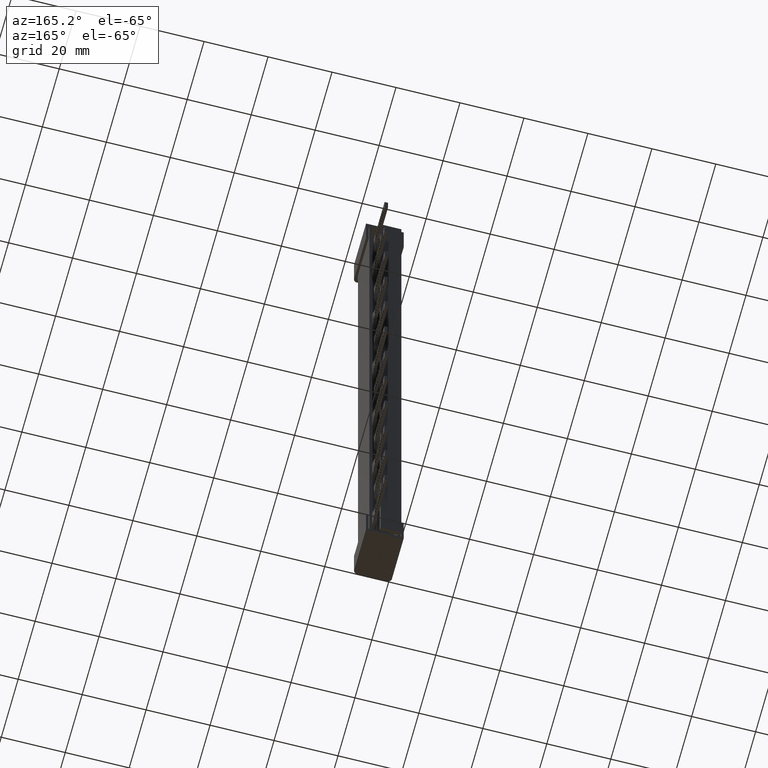
[diagram: clean part render]
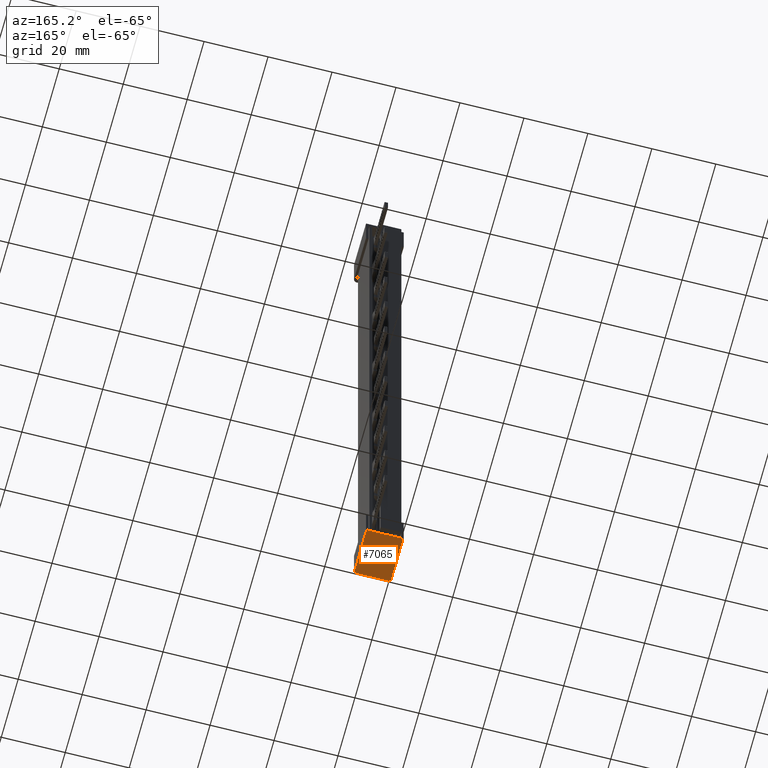
[diagram: same view with one face highlighted and labeled with its STEP entity id]
A machine part, auxiliary view. The second image highlights one B-rep face of the part: STEP entity #7065.
In plain terms, the highlighted planar face has unit normal (-0, 0, 1).
Its self-contained STEP definition (entity closure, byte-faithful):
#3563 = PLANE ( 'NONE',  #12224 ) ;
#3565 = DIRECTION ( 'NONE',  ( -6.924738560343257600E-013, 0.0000000000000000000, 1.000000000000000000 ) ) ;
#3573 = DIRECTION ( 'NONE',  ( 1.000000000000000000, 0.0000000000000000000, 6.924738560343257600E-013 ) ) ;
#3595 = FACE_OUTER_BOUND ( 'NONE', #8640, .T. ) ;
#3597 = CARTESIAN_POINT ( 'NONE',  ( 9.700000000278780700, -0.3999999999998344900, 6.710127245512786900E-012 ) ) ;
#4538 = VECTOR ( 'NONE', #17994, 1000.000000000000000 ) ;
#4558 = VECTOR ( 'NONE', #17958, 1000.000000000000000 ) ;
#4971 = VECTOR ( 'NONE', #19773, 1000.000000000000000 ) ;
#5095 = VECTOR ( 'NONE', #19856, 1000.000000000000000 ) ;
#7065 = ADVANCED_FACE ( 'NONE', ( #3595 ), #3563, .F. ) ;
#7844 = EDGE_CURVE ( 'NONE', #14029, #14024, #16155, .T. ) ;
#7867 = EDGE_CURVE ( 'NONE', #14129, #14050, #17955, .T. ) ;
#7882 = EDGE_CURVE ( 'NONE', #14027, #14029, #18004, .T. ) ;
#8302 = EDGE_CURVE ( 'NONE', #14032, #14129, #16154, .T. ) ;
#8430 = EDGE_CURVE ( 'NONE', #14024, #14032, #19738, .T. ) ;
#8640 = EDGE_LOOP ( 'NONE', ( #12858, #12844, #12857, #12859, #12831, #12880 ) ) ;
#11886 = EDGE_CURVE ( 'NONE', #14027, #14050, #19852, .T. ) ;
#12224 = AXIS2_PLACEMENT_3D ( 'NONE', #3597, #3565, #3573 ) ;
#12831 = ORIENTED_EDGE ( 'NONE', *, *, #7867, .F. ) ;
#12844 = ORIENTED_EDGE ( 'NONE', *, *, #7844, .F. ) ;
#12857 = ORIENTED_EDGE ( 'NONE', *, *, #7882, .F. ) ;
#12858 = ORIENTED_EDGE ( 'NONE', *, *, #8430, .F. ) ;
#12859 = ORIENTED_EDGE ( 'NONE', *, *, #11886, .T. ) ;
#12880 = ORIENTED_EDGE ( 'NONE', *, *, #8302, .F. ) ;
#14024 = VERTEX_POINT ( 'NONE', #21852 ) ;
#14027 = VERTEX_POINT ( 'NONE', #21880 ) ;
#14029 = VERTEX_POINT ( 'NONE', #21929 ) ;
#14032 = VERTEX_POINT ( 'NONE', #21884 ) ;
#14050 = VERTEX_POINT ( 'NONE', #21921 ) ;
#14129 = VERTEX_POINT ( 'NONE', #21978 ) ;
#16154 =( BOUNDED_CURVE ( )  B_SPLINE_CURVE ( 3, ( #19552, #19572, #19574, #19573 ),
 .UNSPECIFIED., .F., .T. ) 
 B_SPLINE_CURVE_WITH_KNOTS ( ( 4, 4 ),
 ( 0.0000000000000000000, 1.000000000000000000 ),
 .UNSPECIFIED. ) 
 CURVE ( )  GEOMETRIC_REPRESENTATION_ITEM ( )  RATIONAL_B_SPLINE_CURVE ( ( 1.000000000000000000, 0.8047378541235263900, 0.8047378541235263900, 1.000000000000000000 ) ) 
 REPRESENTATION_ITEM ( '' )  );
#16155 =( BOUNDED_CURVE ( )  B_SPLINE_CURVE ( 3, ( #17916, #17893, #17896, #17923 ),
 .UNSPECIFIED., .F., .F. ) 
 B_SPLINE_CURVE_WITH_KNOTS ( ( 4, 4 ),
 ( 0.0000000000000000000, 1.000000000000000000 ),
 .UNSPECIFIED. ) 
 CURVE ( )  GEOMETRIC_REPRESENTATION_ITEM ( )  RATIONAL_B_SPLINE_CURVE ( ( 1.000000000000000000, 0.8047378541243649400, 0.8047378541243649400, 1.000000000000000000 ) ) 
 REPRESENTATION_ITEM ( '' )  );
#17893 = CARTESIAN_POINT ( 'NONE',  ( -0.8999999997212686500, -0.8686291501013691000, -6.380529785077196600E-013 ) ) ;
#17896 = CARTESIAN_POINT ( 'NONE',  ( -0.5686291498227850100, -1.199999999999853200, -4.085448981603983800E-013 ) ) ;
#17916 = CARTESIAN_POINT ( 'NONE',  ( -0.8999999997212996300, -0.3999999999998344300, -6.343938644890235300E-013 ) ) ;
#17923 = CARTESIAN_POINT ( 'NONE',  ( -0.09999999972125016300, -1.199999999999840100, -7.666657185838461300E-014 ) ) ;
#17934 = CARTESIAN_POINT ( 'NONE',  ( 10.50000000027876700, -0.3999999999998344900, 7.264106330340238200E-012 ) ) ;
#17955 = LINE ( 'NONE', #17934, #4558 ) ;
#17958 = DIRECTION ( 'NONE',  ( 0.0000000000000000000, 1.000000000000000000, -0.0000000000000000000 ) ) ;
#17991 = CARTESIAN_POINT ( 'NONE',  ( -0.8999999997213563600, -0.3999999999998344900, -6.300956284511613100E-013 ) ) ;
#17994 = DIRECTION ( 'NONE',  ( -0.0000000000000000000, -1.000000000000000000, 0.0000000000000000000 ) ) ;
#18004 = LINE ( 'NONE', #17991, #4538 ) ;
#19552 = CARTESIAN_POINT ( 'NONE',  ( 9.700000000278070200, -1.199999999999835600, 6.712874987026594500E-012 ) ) ;
#19572 = CARTESIAN_POINT ( 'NONE',  ( 10.16862915037878200, -1.200000000001503200, 7.040042400889120700E-012 ) ) ;
#19573 = CARTESIAN_POINT ( 'NONE',  ( 10.50000000027872300, -0.3999999999998333200, 7.267962499196697300E-012 ) ) ;
#19574 = CARTESIAN_POINT ( 'NONE',  ( 10.50000000027878900, -0.8686291501026788300, 7.269673144710832500E-012 ) ) ;
#19738 = LINE ( 'NONE', #19778, #4971 ) ;
#19773 = DIRECTION ( 'NONE',  ( 1.000000000000000000, 0.0000000000000000000, 6.924738560343257600E-013 ) ) ;
#19778 = CARTESIAN_POINT ( 'NONE',  ( 9.700000000278780700, -1.199999999999835400, 6.710127245512786900E-012 ) ) ;
#19852 = LINE ( 'NONE', #19869, #5095 ) ;
#19856 = DIRECTION ( 'NONE',  ( 1.000000000000000000, 0.0000000000000000000, 0.0000000000000000000 ) ) ;
#19869 = CARTESIAN_POINT ( 'NONE',  ( 10.70000000027151700, 13.60000000000009400, -6.349087922075114000E-013 ) ) ;
#21852 = CARTESIAN_POINT ( 'NONE',  ( -0.09999999972125016300, -1.199999999999840100, -7.666657185838461300E-014 ) ) ;
#21880 = CARTESIAN_POINT ( 'NONE',  ( -0.8999999997213732300, 13.60000000000009400, -6.324964423737311500E-013 ) ) ;
#21884 = CARTESIAN_POINT ( 'NONE',  ( 9.700000000278070200, -1.199999999999835600, 6.712874987026594500E-012 ) ) ;
#21921 = CARTESIAN_POINT ( 'NONE',  ( 10.50000000027870700, 13.60000000000009400, 3.314595776668372000E-012 ) ) ;
#21929 = CARTESIAN_POINT ( 'NONE',  ( -0.8999999997212996300, -0.3999999999998344300, -6.343938644890235300E-013 ) ) ;
#21978 = CARTESIAN_POINT ( 'NONE',  ( 10.50000000027872300, -0.3999999999998333200, 7.267962499196697300E-012 ) ) ;